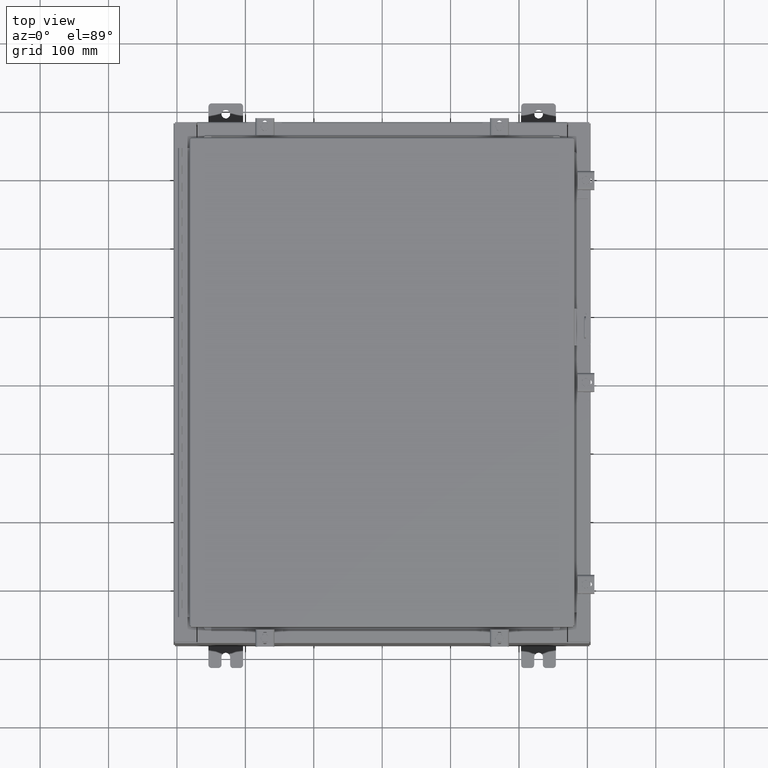
[diagram: clean part render]
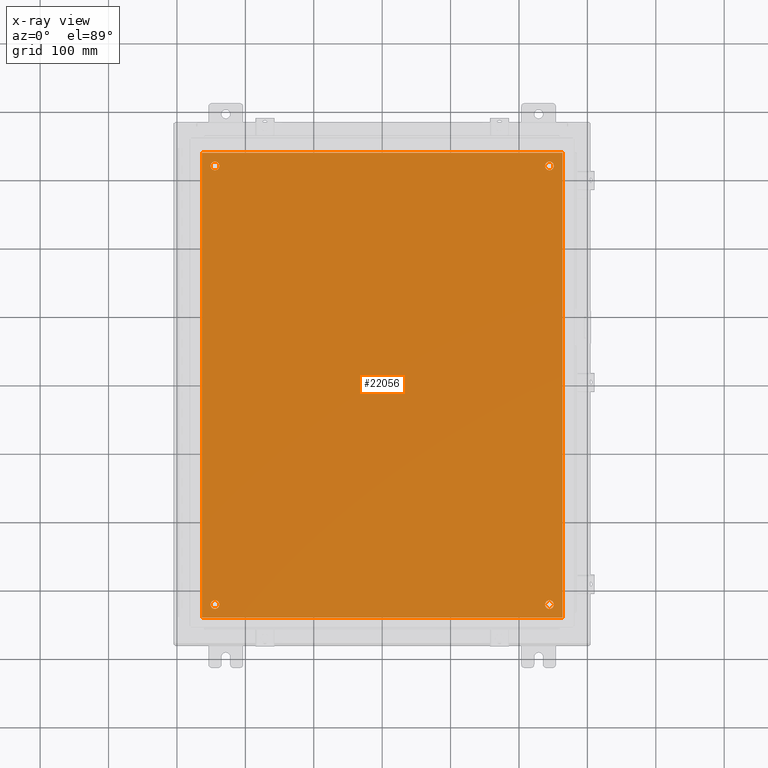
[diagram: x-ray — body ghosted, one internal face saturated and labeled with its STEP entity id]
A machine part, top view, then the same camera in x-ray: the body is ghosted and one INTERNAL B-rep face — a face not visible from any outside direction — is saturated and labeled: STEP entity #22056.
In plain terms, the highlighted planar face has unit normal (0, 0, -1).
Its self-contained STEP definition (entity closure, byte-faithful):
#315 = EDGE_CURVE ( 'NONE', #29298, #37764, #4132, .T. ) ;
#866 = ORIENTED_EDGE ( 'NONE', *, *, #19490, .T. ) ;
#1103 = CARTESIAN_POINT ( 'NONE',  ( -9.625000000000007100, -12.62500000000000000, -0.1039999999999999800 ) ) ;
#1132 = VERTEX_POINT ( 'NONE', #30359 ) ;
#1164 = FACE_BOUND ( 'NONE', #3729, .T. ) ;
#1186 = DIRECTION ( 'NONE',  ( -1.000000000000000000, 0.0000000000000000000, 0.0000000000000000000 ) ) ;
#1874 = CARTESIAN_POINT ( 'NONE',  ( 9.625000000000007100, -12.62500000000000000, -0.1039999999999999800 ) ) ;
#2256 = CIRCLE ( 'NONE', #12079, 0.2499999999999998100 ) ;
#2482 = DIRECTION ( 'NONE',  ( -1.000000000000000000, 0.0000000000000000000, 0.0000000000000000000 ) ) ;
#2709 = CARTESIAN_POINT ( 'NONE',  ( -9.875000000000007100, -12.62500000000000000, -0.1039999999999999800 ) ) ;
#3195 = CARTESIAN_POINT ( 'NONE',  ( -9.375000000000007100, -12.62500000000000000, -0.1039999999999999800 ) ) ;
#3295 = CARTESIAN_POINT ( 'NONE',  ( 9.625000000000007100, 12.62500000000000000, -0.1039999999999999800 ) ) ;
#3729 = EDGE_LOOP ( 'NONE', ( #23739, #11688 ) ) ;
#3900 = EDGE_LOOP ( 'NONE', ( #866, #35558 ) ) ;
#4114 = DIRECTION ( 'NONE',  ( -0.0000000000000000000, -0.0000000000000000000, 1.000000000000000000 ) ) ;
#4132 = CIRCLE ( 'NONE', #8982, 0.2499999999999998100 ) ;
#4271 = DIRECTION ( 'NONE',  ( -0.0000000000000000000, -0.0000000000000000000, 1.000000000000000000 ) ) ;
#4421 = CIRCLE ( 'NONE', #11982, 0.2500000000000008900 ) ;
#4446 = CIRCLE ( 'NONE', #4970, 0.2499999999999998100 ) ;
#4970 = AXIS2_PLACEMENT_3D ( 'NONE', #9513, #37274, #26687 ) ;
#5070 = DIRECTION ( 'NONE',  ( -0.0000000000000000000, -0.0000000000000000000, 1.000000000000000000 ) ) ;
#5201 = ORIENTED_EDGE ( 'NONE', *, *, #23013, .T. ) ;
#7433 = EDGE_CURVE ( 'NONE', #12752, #1132, #22113, .T. ) ;
#7637 = VERTEX_POINT ( 'NONE', #3195 ) ;
#7973 = DIRECTION ( 'NONE',  ( -0.0000000000000000000, -0.0000000000000000000, 1.000000000000000000 ) ) ;
#8524 = DIRECTION ( 'NONE',  ( -0.0000000000000000000, -0.0000000000000000000, 1.000000000000000000 ) ) ;
#8883 = EDGE_CURVE ( 'NONE', #25656, #7637, #33916, .T. ) ;
#8982 = AXIS2_PLACEMENT_3D ( 'NONE', #3295, #4114, #29867 ) ;
#9513 = CARTESIAN_POINT ( 'NONE',  ( 9.625000000000007100, 12.62500000000000000, -0.1039999999999999800 ) ) ;
#10421 = DIRECTION ( 'NONE',  ( -1.000000000000000000, 0.0000000000000000000, 0.0000000000000000000 ) ) ;
#10541 = AXIS2_PLACEMENT_3D ( 'NONE', #19847, #18600, #18335 ) ;
#11060 = VECTOR ( 'NONE', #22607, 39.37007874015748100 ) ;
#11472 = EDGE_CURVE ( 'NONE', #22386, #12752, #16918, .T. ) ;
#11688 = ORIENTED_EDGE ( 'NONE', *, *, #315, .T. ) ;
#11982 = AXIS2_PLACEMENT_3D ( 'NONE', #19861, #4271, #35032 ) ;
#12059 = ORIENTED_EDGE ( 'NONE', *, *, #8883, .T. ) ;
#12079 = AXIS2_PLACEMENT_3D ( 'NONE', #1874, #7973, #10421 ) ;
#12739 = PLANE ( 'NONE',  #33955 ) ;
#12752 = VERTEX_POINT ( 'NONE', #14876 ) ;
#12965 = EDGE_LOOP ( 'NONE', ( #13818, #27185, #17459, #22689 ) ) ;
#13027 = EDGE_CURVE ( 'NONE', #1132, #24040, #31755, .T. ) ;
#13369 = CARTESIAN_POINT ( 'NONE',  ( 10.38300000000000100, -13.38299999999999700, -0.1040000000000009100 ) ) ;
#13818 = ORIENTED_EDGE ( 'NONE', *, *, #13027, .F. ) ;
#13940 = EDGE_CURVE ( 'NONE', #24040, #22386, #24583, .T. ) ;
#13990 = FACE_BOUND ( 'NONE', #3900, .T. ) ;
#14284 = EDGE_CURVE ( 'NONE', #22688, #24075, #2256, .T. ) ;
#14524 = DIRECTION ( 'NONE',  ( 0.0000000000000000000, -1.000000000000000000, 0.0000000000000000000 ) ) ;
#14629 = FACE_BOUND ( 'NONE', #23024, .T. ) ;
#14876 = CARTESIAN_POINT ( 'NONE',  ( -10.38300000000000100, 13.38299999999999700, -0.1040000000000020100 ) ) ;
#15447 = VERTEX_POINT ( 'NONE', #21321 ) ;
#15492 = CARTESIAN_POINT ( 'NONE',  ( 10.38300000000000100, 13.38299999999999700, -0.1040000000000009100 ) ) ;
#16277 = ORIENTED_EDGE ( 'NONE', *, *, #27068, .T. ) ;
#16851 = DIRECTION ( 'NONE',  ( -1.000000000000000000, 0.0000000000000000000, -0.0000000000000000000 ) ) ;
#16918 = LINE ( 'NONE', #29135, #27663 ) ;
#17459 = ORIENTED_EDGE ( 'NONE', *, *, #11472, .F. ) ;
#18085 = CARTESIAN_POINT ( 'NONE',  ( 0.0000000000000000000, 0.0000000000000000000, -0.1039999999999999800 ) ) ;
#18335 = DIRECTION ( 'NONE',  ( -1.000000000000000000, 0.0000000000000000000, 0.0000000000000000000 ) ) ;
#18417 = CARTESIAN_POINT ( 'NONE',  ( -10.38300000000000100, 13.38299999999999700, -0.1040000000000020100 ) ) ;
#18600 = DIRECTION ( 'NONE',  ( -0.0000000000000000000, -0.0000000000000000000, 1.000000000000000000 ) ) ;
#19490 = EDGE_CURVE ( 'NONE', #33480, #15447, #20172, .T. ) ;
#19847 = CARTESIAN_POINT ( 'NONE',  ( -9.625000000000007100, 12.62500000000000000, -0.1039999999999999800 ) ) ;
#19861 = CARTESIAN_POINT ( 'NONE',  ( -9.625000000000007100, 12.62500000000000000, -0.1039999999999999800 ) ) ;
#19995 = ORIENTED_EDGE ( 'NONE', *, *, #14284, .T. ) ;
#20172 = CIRCLE ( 'NONE', #10541, 0.2500000000000008900 ) ;
#20332 = DIRECTION ( 'NONE',  ( -1.000000000000000000, -0.0000000000000000000, -0.0000000000000000000 ) ) ;
#21216 = AXIS2_PLACEMENT_3D ( 'NONE', #1103, #5070, #1186 ) ;
#21321 = CARTESIAN_POINT ( 'NONE',  ( -9.875000000000007100, 12.62500000000000000, -0.1039999999999999800 ) ) ;
#22056 = ADVANCED_FACE ( 'NONE', ( #14629, #25411, #1164, #13990, #36789 ), #12739, .T. ) ;
#22113 = LINE ( 'NONE', #18417, #25974 ) ;
#22197 = DIRECTION ( 'NONE',  ( 0.0000000000000000000, 0.0000000000000000000, -1.000000000000000000 ) ) ;
#22386 = VERTEX_POINT ( 'NONE', #15492 ) ;
#22607 = DIRECTION ( 'NONE',  ( 0.0000000000000000000, 1.000000000000000000, 0.0000000000000000000 ) ) ;
#22688 = VERTEX_POINT ( 'NONE', #31489 ) ;
#22689 = ORIENTED_EDGE ( 'NONE', *, *, #13940, .F. ) ;
#23013 = EDGE_CURVE ( 'NONE', #7637, #25656, #29102, .T. ) ;
#23024 = EDGE_LOOP ( 'NONE', ( #5201, #12059 ) ) ;
#23514 = EDGE_LOOP ( 'NONE', ( #16277, #19995 ) ) ;
#23739 = ORIENTED_EDGE ( 'NONE', *, *, #31817, .T. ) ;
#24040 = VERTEX_POINT ( 'NONE', #24468 ) ;
#24075 = VERTEX_POINT ( 'NONE', #25612 ) ;
#24086 = DIRECTION ( 'NONE',  ( 1.000000000000000000, -0.0000000000000000000, -0.0000000000000000000 ) ) ;
#24312 = CARTESIAN_POINT ( 'NONE',  ( 9.875000000000007100, 12.62500000000000000, -0.1039999999999999800 ) ) ;
#24468 = CARTESIAN_POINT ( 'NONE',  ( 10.38300000000000100, -13.38299999999999700, -0.1040000000000009100 ) ) ;
#24542 = CARTESIAN_POINT ( 'NONE',  ( -9.625000000000007100, -12.62500000000000000, -0.1039999999999999800 ) ) ;
#24544 = AXIS2_PLACEMENT_3D ( 'NONE', #24542, #35261, #2482 ) ;
#24583 = LINE ( 'NONE', #13369, #11060 ) ;
#25411 = FACE_BOUND ( 'NONE', #23514, .T. ) ;
#25612 = CARTESIAN_POINT ( 'NONE',  ( 9.875000000000007100, -12.62500000000000000, -0.1039999999999999800 ) ) ;
#25656 = VERTEX_POINT ( 'NONE', #2709 ) ;
#25974 = VECTOR ( 'NONE', #14524, 39.37007874015748100 ) ;
#26687 = DIRECTION ( 'NONE',  ( -1.000000000000000000, 0.0000000000000000000, 0.0000000000000000000 ) ) ;
#26720 = EDGE_CURVE ( 'NONE', #15447, #33480, #4421, .T. ) ;
#27001 = AXIS2_PLACEMENT_3D ( 'NONE', #36853, #8524, #31017 ) ;
#27068 = EDGE_CURVE ( 'NONE', #24075, #22688, #31099, .T. ) ;
#27185 = ORIENTED_EDGE ( 'NONE', *, *, #7433, .F. ) ;
#27663 = VECTOR ( 'NONE', #20332, 39.37007874015748100 ) ;
#29102 = CIRCLE ( 'NONE', #24544, 0.2500000000000008900 ) ;
#29135 = CARTESIAN_POINT ( 'NONE',  ( 10.50000000000000400, 13.38299999999999900, -0.1040000000000009100 ) ) ;
#29298 = VERTEX_POINT ( 'NONE', #36478 ) ;
#29867 = DIRECTION ( 'NONE',  ( -1.000000000000000000, 0.0000000000000000000, 0.0000000000000000000 ) ) ;
#30359 = CARTESIAN_POINT ( 'NONE',  ( -10.38300000000000100, -13.38299999999999900, -0.1040000000000009100 ) ) ;
#31017 = DIRECTION ( 'NONE',  ( -1.000000000000000000, 0.0000000000000000000, 0.0000000000000000000 ) ) ;
#31099 = CIRCLE ( 'NONE', #27001, 0.2499999999999998100 ) ;
#31489 = CARTESIAN_POINT ( 'NONE',  ( 9.375000000000007100, -12.62500000000000000, -0.1039999999999999800 ) ) ;
#31755 = LINE ( 'NONE', #35238, #32204 ) ;
#31817 = EDGE_CURVE ( 'NONE', #37764, #29298, #4446, .T. ) ;
#32204 = VECTOR ( 'NONE', #24086, 39.37007874015748100 ) ;
#33480 = VERTEX_POINT ( 'NONE', #35674 ) ;
#33916 = CIRCLE ( 'NONE', #21216, 0.2500000000000008900 ) ;
#33955 = AXIS2_PLACEMENT_3D ( 'NONE', #18085, #22197, #16851 ) ;
#35032 = DIRECTION ( 'NONE',  ( -1.000000000000000000, 0.0000000000000000000, 0.0000000000000000000 ) ) ;
#35238 = CARTESIAN_POINT ( 'NONE',  ( -10.50000000000000200, -13.38299999999999900, -0.1040000000000009100 ) ) ;
#35261 = DIRECTION ( 'NONE',  ( -0.0000000000000000000, -0.0000000000000000000, 1.000000000000000000 ) ) ;
#35558 = ORIENTED_EDGE ( 'NONE', *, *, #26720, .T. ) ;
#35674 = CARTESIAN_POINT ( 'NONE',  ( -9.375000000000007100, 12.62500000000000000, -0.1039999999999999800 ) ) ;
#36478 = CARTESIAN_POINT ( 'NONE',  ( 9.375000000000007100, 12.62500000000000000, -0.1039999999999999800 ) ) ;
#36789 = FACE_OUTER_BOUND ( 'NONE', #12965, .T. ) ;
#36853 = CARTESIAN_POINT ( 'NONE',  ( 9.625000000000007100, -12.62500000000000000, -0.1039999999999999800 ) ) ;
#37274 = DIRECTION ( 'NONE',  ( -0.0000000000000000000, -0.0000000000000000000, 1.000000000000000000 ) ) ;
#37764 = VERTEX_POINT ( 'NONE', #24312 ) ;